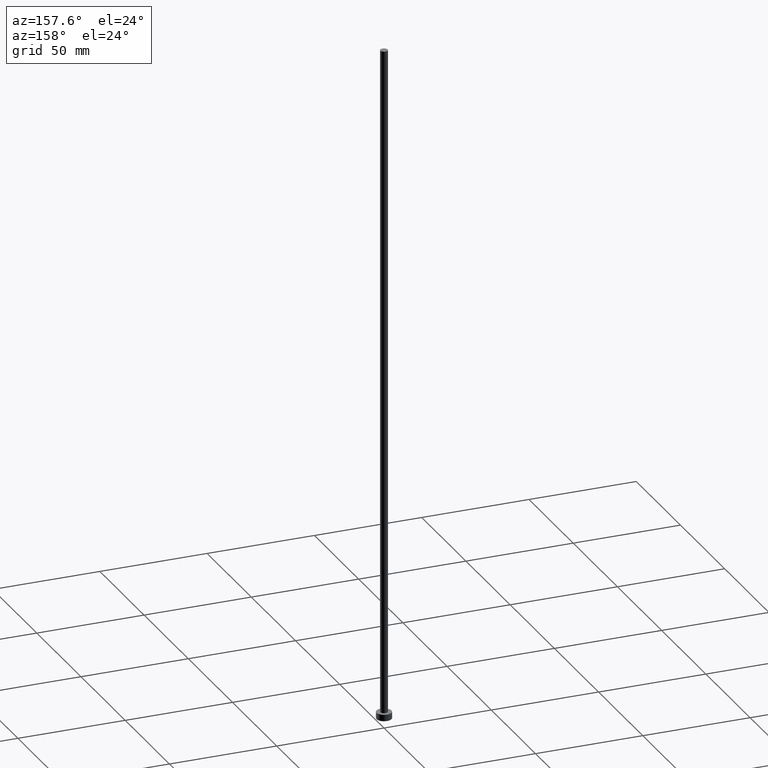
[diagram: clean part render]
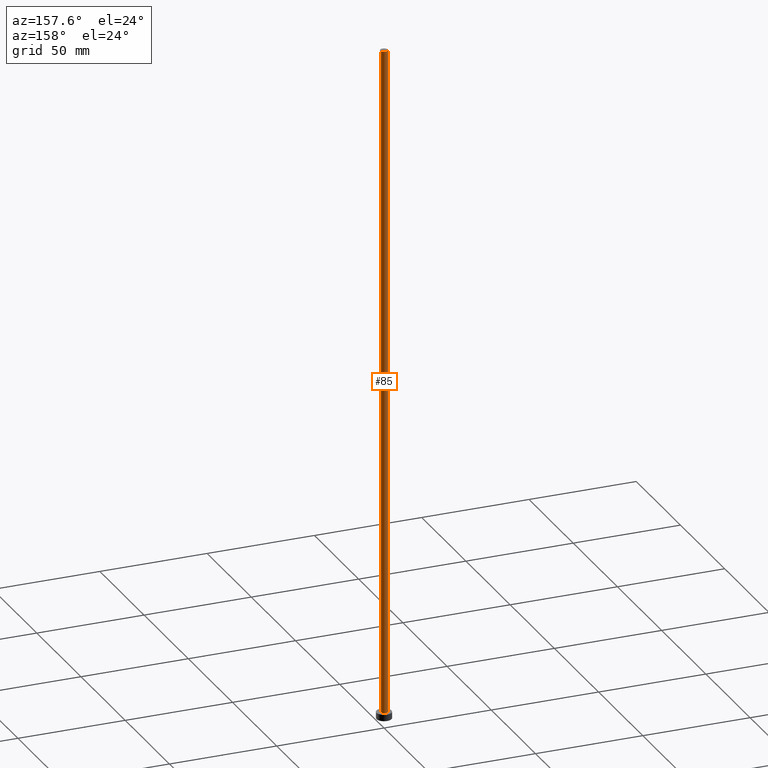
[diagram: same view with one face highlighted and labeled with its STEP entity id]
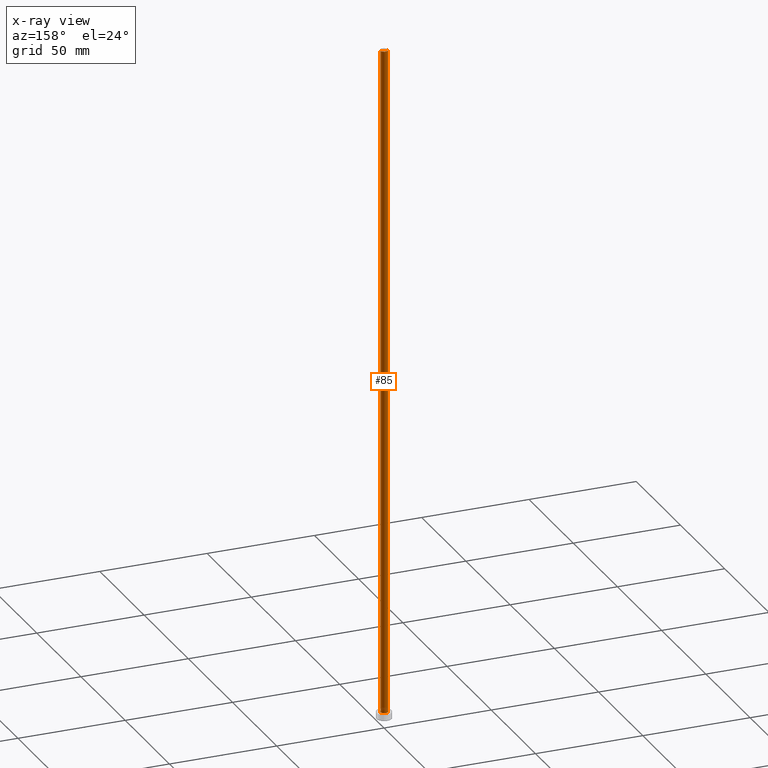
[diagram: x-ray of the same camera — body ghosted, the highlighted face saturated]
A machine part, auxiliary view. The second image highlights one B-rep face of the part: STEP entity #85.
The next image is the same camera in x-ray: the body ghosted, the highlighted face saturated — about 0% of this face is hidden behind the body in this view.
In plain terms, the highlighted cylindrical surface (edge-blend (fillet) strip) has radius 1.75 mm, axis along (-0, -0, -1).
Its self-contained STEP definition (entity closure, byte-faithful):
#7 = CARTESIAN_POINT ( 'NONE',  ( -1.750000000000000000, 0.000000000000000000, 3.000000000000000000 ) ) ;
#10 = VERTEX_POINT ( 'NONE', #7 ) ;
#12 = VECTOR ( 'NONE', #26, 1000.000000000000000 ) ;
#26 = DIRECTION ( 'NONE',  ( -0.000000000000000000, -0.000000000000000000, -1.000000000000000000 ) ) ;
#31 = ORIENTED_EDGE ( 'NONE', *, *, #190, .T. ) ;
#50 = CARTESIAN_POINT ( 'NONE',  ( -1.750000000000000000, 0.000000000000000000, 315.0000000000000000 ) ) ;
#51 = VERTEX_POINT ( 'NONE', #199 ) ;
#57 = CIRCLE ( 'NONE', #98, 1.750000000000000000 ) ;
#63 = DIRECTION ( 'NONE',  ( -0.000000000000000000, -0.000000000000000000, -1.000000000000000000 ) ) ;
#70 = CARTESIAN_POINT ( 'NONE',  ( 0.000000000000000000, 0.000000000000000000, 315.0000000000000000 ) ) ;
#76 = CYLINDRICAL_SURFACE ( 'NONE', #114, 1.750000000000000000 ) ;
#85 = ADVANCED_FACE ( 'NONE', ( #95 ), #76, .T. ) ;
#90 = CARTESIAN_POINT ( 'NONE',  ( -1.750000000000000000, 0.000000000000000000, 315.0000000000000000 ) ) ;
#91 = EDGE_LOOP ( 'NONE', ( #248, #31, #133, #132 ) ) ;
#95 = FACE_OUTER_BOUND ( 'NONE', #91, .T. ) ;
#98 = AXIS2_PLACEMENT_3D ( 'NONE', #103, #128, #181 ) ;
#103 = CARTESIAN_POINT ( 'NONE',  ( 0.000000000000000000, 0.000000000000000000, 315.0000000000000000 ) ) ;
#106 = LINE ( 'NONE', #134, #237 ) ;
#114 = AXIS2_PLACEMENT_3D ( 'NONE', #70, #216, #162 ) ;
#128 = DIRECTION ( 'NONE',  ( 0.000000000000000000, 0.000000000000000000, 1.000000000000000000 ) ) ;
#132 = ORIENTED_EDGE ( 'NONE', *, *, #253, .F. ) ;
#133 = ORIENTED_EDGE ( 'NONE', *, *, #152, .T. ) ;
#134 = CARTESIAN_POINT ( 'NONE',  ( 1.750000000000000000, 2.143131898507868297E-16, 315.0000000000000000 ) ) ;
#143 = CIRCLE ( 'NONE', #205, 1.750000000000000000 ) ;
#152 = EDGE_CURVE ( 'NONE', #51, #10, #143, .T. ) ;
#162 = DIRECTION ( 'NONE',  ( -1.000000000000000000, 0.000000000000000000, 0.000000000000000000 ) ) ;
#163 = CARTESIAN_POINT ( 'NONE',  ( 0.000000000000000000, 0.000000000000000000, 3.000000000000000000 ) ) ;
#173 = EDGE_CURVE ( 'NONE', #241, #228, #57, .T. ) ;
#181 = DIRECTION ( 'NONE',  ( 1.000000000000000000, 0.000000000000000000, 0.000000000000000000 ) ) ;
#190 = EDGE_CURVE ( 'NONE', #241, #51, #106, .T. ) ;
#199 = CARTESIAN_POINT ( 'NONE',  ( 1.750000000000000000, 2.143131898507868297E-16, 3.000000000000000000 ) ) ;
#205 = AXIS2_PLACEMENT_3D ( 'NONE', #163, #235, #213 ) ;
#208 = CARTESIAN_POINT ( 'NONE',  ( 1.750000000000000000, 2.143131898507868297E-16, 315.0000000000000000 ) ) ;
#213 = DIRECTION ( 'NONE',  ( 1.000000000000000000, 0.000000000000000000, 0.000000000000000000 ) ) ;
#216 = DIRECTION ( 'NONE',  ( -0.000000000000000000, -0.000000000000000000, -1.000000000000000000 ) ) ;
#228 = VERTEX_POINT ( 'NONE', #50 ) ;
#235 = DIRECTION ( 'NONE',  ( 0.000000000000000000, 0.000000000000000000, 1.000000000000000000 ) ) ;
#237 = VECTOR ( 'NONE', #63, 1000.000000000000000 ) ;
#241 = VERTEX_POINT ( 'NONE', #208 ) ;
#243 = LINE ( 'NONE', #90, #12 ) ;
#248 = ORIENTED_EDGE ( 'NONE', *, *, #173, .F. ) ;
#253 = EDGE_CURVE ( 'NONE', #228, #10, #243, .T. ) ;